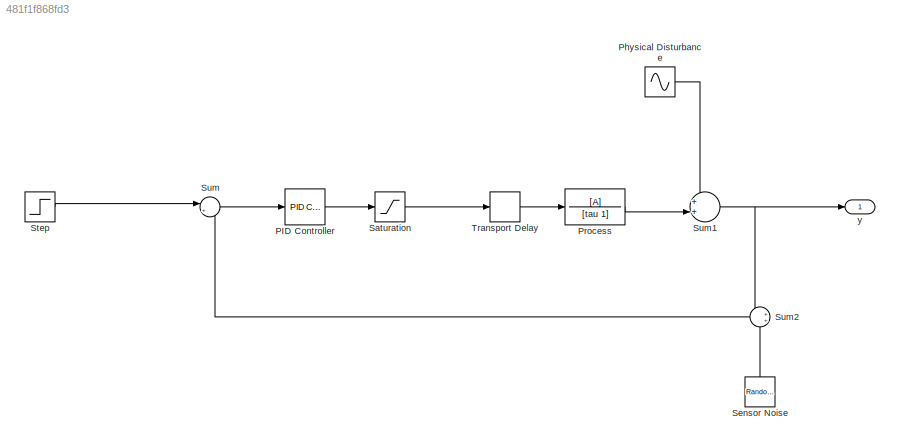
MODEL slx_481f1f868fd3
KIND model
CONFIG AbsTol = auto
CONFIG EnableMultiTasking = off
CONFIG FixedStep = .0001
CONFIG MaxStep = auto
CONFIG MinStep = auto
CONFIG RelTol = 1e-3
CONFIG SampleTimeConstraint = Unconstrained
CONFIG Solver = FixedStepAuto
CONFIG SolverName = FixedStepAuto
CONFIG StartTime = 0.0
CONFIG StopTime = 10
BLOCK [Reference] PID Controller  REF=simulink/Continuous/PID Controller
  Ports = [1, 1]
  SourceBlock = simulink/Continuous/PID Controller
  SourceType = PID 1dof
BLOCK [Sin] Physical Disturbance
  Amplitude = d
  Frequency = dfreq
  Ports = [0, 1]
  SampleTime = 0
BLOCK [TransferFcn] Process
  Denominator = [tau 1]
  Numerator = [A]
BLOCK [Saturate] Saturation
  InputPortMap = u0
  LowerLimit = 0
  Ports = [1, 1]
  UpperLimit = sat_lim
BLOCK [RandomNumber] Sensor Noise
  SampleTime = sensorrate
  Variance = v
BLOCK [Step] Step
  After = r
  SampleTime = 0
  Time = 0
BLOCK [Sum] Sum
  IconShape = round
  InputSameDT = off
  Inputs = |+-
  OutDataTypeStr = Inherit: Inherit via internal rule
  Ports = [2, 1]
  SaturateOnIntegerOverflow = off
BLOCK [Sum] Sum1
  IconShape = round
  InputSameDT = off
  Inputs = ++|
  OutDataTypeStr = Inherit: Inherit via internal rule
  Ports = [2, 1]
  SaturateOnIntegerOverflow = off
BLOCK [Sum] Sum2
  IconShape = round
  InputSameDT = off
  OutDataTypeStr = Inherit: Inherit via internal rule
  Ports = [2, 1]
  SaturateOnIntegerOverflow = off
BLOCK [TransportDelay] Transport Delay
  DelayTime = td
  Ports = [1, 1]
BLOCK [Outport] y
  IconDisplay = Port number
LINE PID Controller:1 -> Saturation:1
LINE Physical Disturbance:1 -> Sum1:1
LINE Process:1 -> Sum1:2
LINE Saturation:1 -> Transport Delay:1
LINE Sensor Noise:1 -> Sum2:2
LINE Step:1 -> Sum:1
NET Sum1:1 -> Sum2:1, y:1
LINE Sum2:1 -> Sum:2
LINE Sum:1 -> PID Controller:1
LINE Transport Delay:1 -> Process:1
note: NET lines group one-source signal fan-out (src -> all destinations, sorted); 1:1 wires keep LINE
